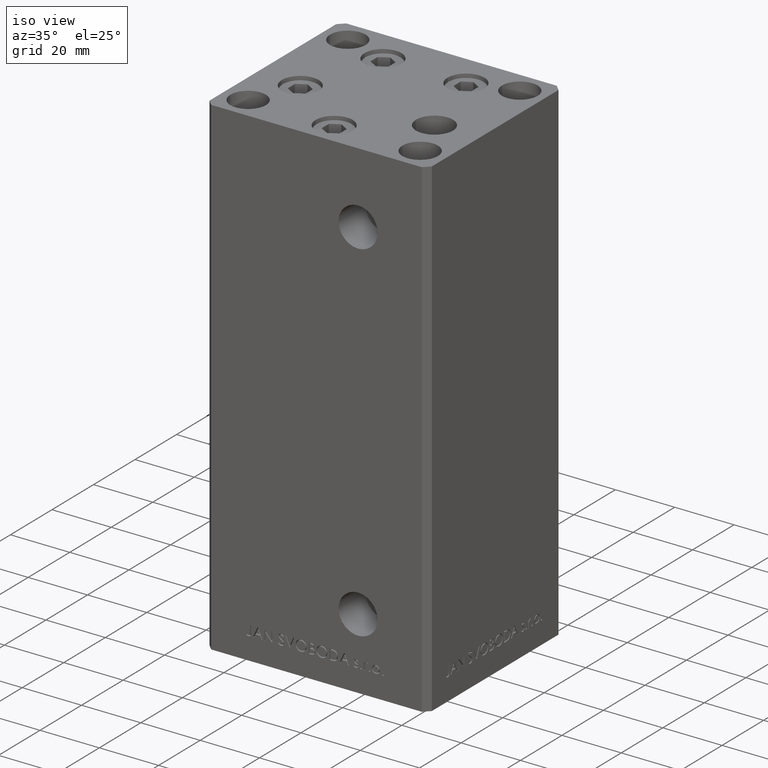
[diagram: clean part render]
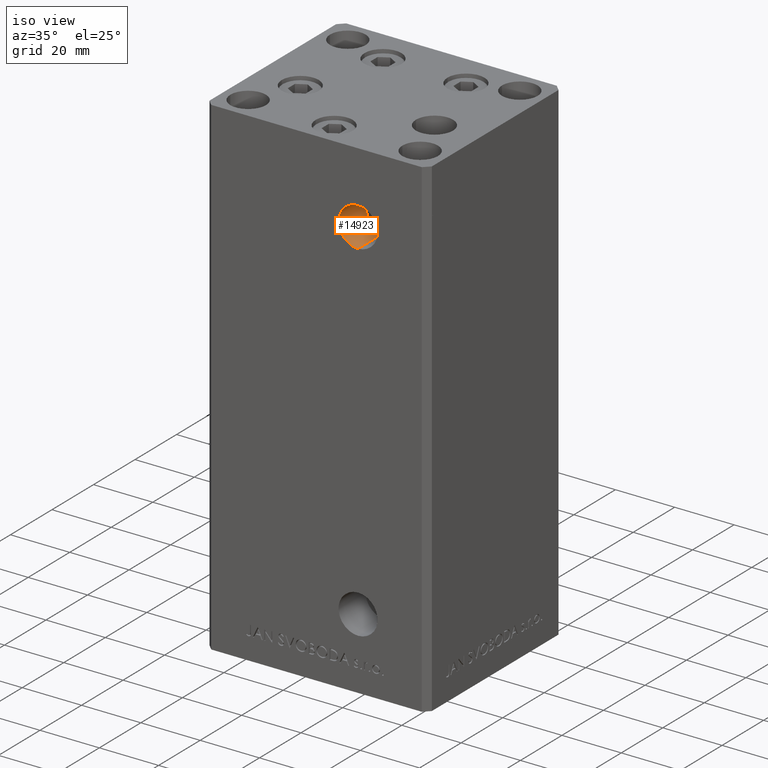
[diagram: same view with one face highlighted and labeled with its STEP entity id]
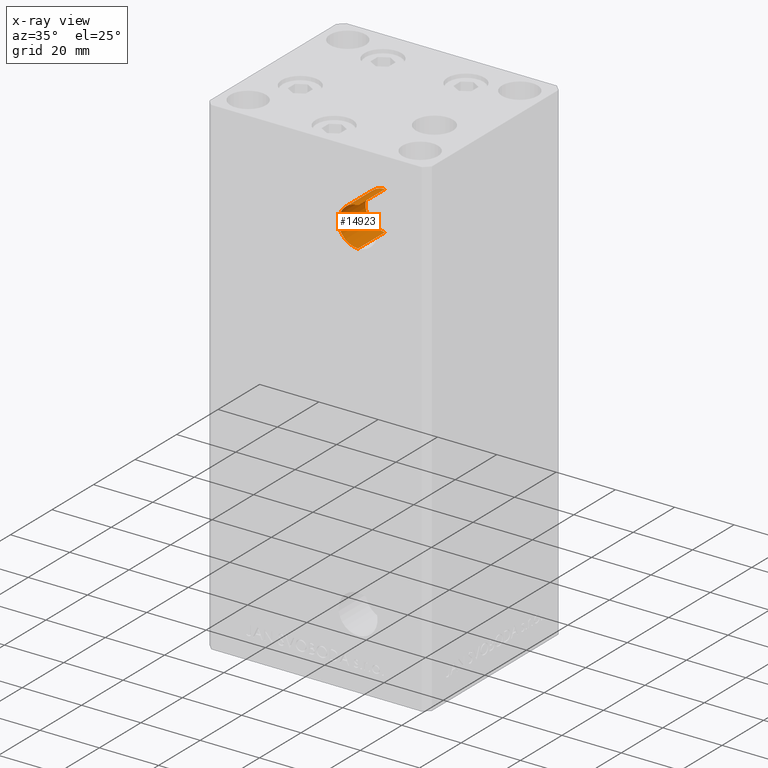
[diagram: x-ray of the same camera — body ghosted, the highlighted face saturated]
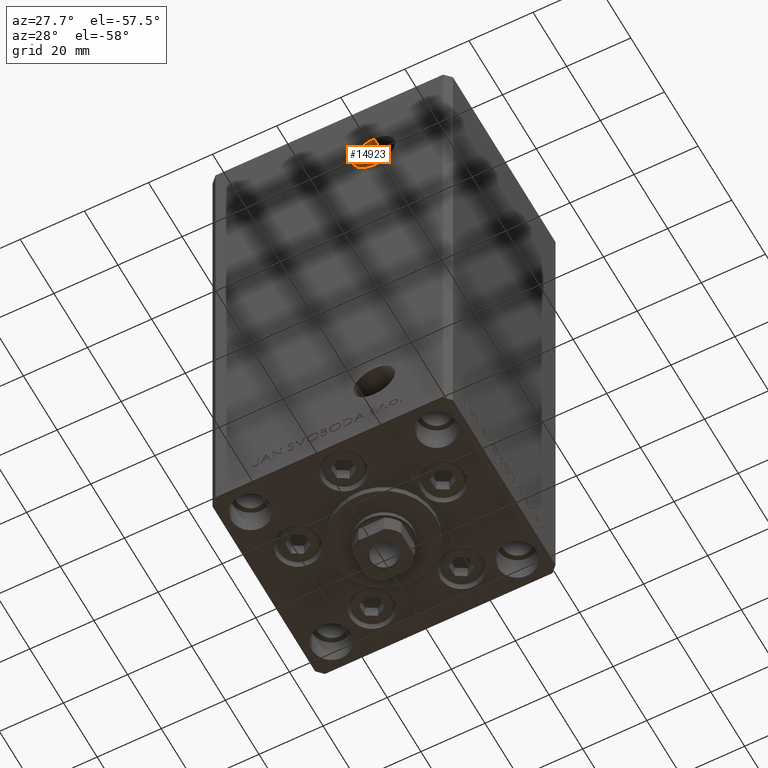
[diagram: same view with one face highlighted and labeled with its STEP entity id]
A machine part, iso view. The second image highlights one B-rep face of the part: STEP entity #14923.
The next image is the same camera in x-ray: the body ghosted, the highlighted face saturated — about 0% of this face is hidden behind the body in this view.
A second angle (auxiliary view) of the same face is appended — the face is thin or edge-on in the first view.
In plain terms, the highlighted cylindrical surface (edge-blend (fillet) strip) has radius 6.58 mm, axis along (-0, -1, -0).
Its self-contained STEP definition (entity closure, byte-faithful):
#991 = CIRCLE ( 'NONE', #35476, 6.580000000000002736 ) ;
#1203 = DIRECTION ( 'NONE',  ( 0.000000000000000000, 0.000000000000000000, -1.000000000000000000 ) ) ;
#3588 = CIRCLE ( 'NONE', #16420, 6.580000000000002736 ) ;
#5665 = ORIENTED_EDGE ( 'NONE', *, *, #31922, .T. ) ;
#6030 = EDGE_LOOP ( 'NONE', ( #5665, #34360, #9479, #35822 ) ) ;
#8101 = CYLINDRICAL_SURFACE ( 'NONE', #23790, 6.580000000000002736 ) ;
#8930 = VECTOR ( 'NONE', #37441, 1000.000000000000000 ) ;
#9479 = ORIENTED_EDGE ( 'NONE', *, *, #37503, .F. ) ;
#9581 = EDGE_CURVE ( 'NONE', #26982, #46742, #44729, .T. ) ;
#11019 = VERTEX_POINT ( 'NONE', #29560 ) ;
#11315 = CARTESIAN_POINT ( 'NONE',  ( 13.99999999999999112, -19.50000000000000355, 120.4200000000000017 ) ) ;
#11475 = DIRECTION ( 'NONE',  ( -0.000000000000000000, -1.000000000000000000, -0.000000000000000000 ) ) ;
#11614 = DIRECTION ( 'NONE',  ( 0.000000000000000000, 0.000000000000000000, -1.000000000000000000 ) ) ;
#12725 = CARTESIAN_POINT ( 'NONE',  ( 13.99999999999999112, -32.50000000000000000, 120.4200000000000017 ) ) ;
#14923 = ADVANCED_FACE ( 'NONE', ( #45534 ), #8101, .F. ) ;
#16420 = AXIS2_PLACEMENT_3D ( 'NONE', #28069, #24291, #1203 ) ;
#20624 = CARTESIAN_POINT ( 'NONE',  ( 13.99999999999999112, -19.50000000000000355, 120.4200000000000017 ) ) ;
#21570 = EDGE_CURVE ( 'NONE', #11019, #29898, #33610, .T. ) ;
#23790 = AXIS2_PLACEMENT_3D ( 'NONE', #46026, #34716, #11614 ) ;
#24291 = DIRECTION ( 'NONE',  ( -0.000000000000000000, 1.000000000000000000, -0.000000000000000000 ) ) ;
#24535 = CARTESIAN_POINT ( 'NONE',  ( 13.99999999999999112, -19.50000000000000355, 127.0000000000000000 ) ) ;
#24779 = DIRECTION ( 'NONE',  ( 0.000000000000000000, 0.000000000000000000, -1.000000000000000000 ) ) ;
#26982 = VERTEX_POINT ( 'NONE', #20624 ) ;
#28069 = CARTESIAN_POINT ( 'NONE',  ( 13.99999999999999112, -32.50000000000000000, 127.0000000000000000 ) ) ;
#29560 = CARTESIAN_POINT ( 'NONE',  ( 13.99999999999999112, -19.50000000000000355, 133.5800000000000125 ) ) ;
#29898 = VERTEX_POINT ( 'NONE', #40558 ) ;
#30567 = CARTESIAN_POINT ( 'NONE',  ( 13.99999999999999112, -19.50000000000000355, 133.5800000000000125 ) ) ;
#31922 = EDGE_CURVE ( 'NONE', #26982, #11019, #991, .T. ) ;
#32050 = VECTOR ( 'NONE', #11475, 1000.000000000000000 ) ;
#33610 = LINE ( 'NONE', #30567, #32050 ) ;
#34360 = ORIENTED_EDGE ( 'NONE', *, *, #21570, .T. ) ;
#34716 = DIRECTION ( 'NONE',  ( -0.000000000000000000, -1.000000000000000000, -0.000000000000000000 ) ) ;
#35476 = AXIS2_PLACEMENT_3D ( 'NONE', #24535, #35844, #24779 ) ;
#35822 = ORIENTED_EDGE ( 'NONE', *, *, #9581, .F. ) ;
#35844 = DIRECTION ( 'NONE',  ( -0.000000000000000000, 1.000000000000000000, -0.000000000000000000 ) ) ;
#37441 = DIRECTION ( 'NONE',  ( -0.000000000000000000, -1.000000000000000000, -0.000000000000000000 ) ) ;
#37503 = EDGE_CURVE ( 'NONE', #46742, #29898, #3588, .T. ) ;
#40558 = CARTESIAN_POINT ( 'NONE',  ( 13.99999999999999112, -32.50000000000000000, 133.5800000000000125 ) ) ;
#44729 = LINE ( 'NONE', #11315, #8930 ) ;
#45534 = FACE_OUTER_BOUND ( 'NONE', #6030, .T. ) ;
#46026 = CARTESIAN_POINT ( 'NONE',  ( 13.99999999999999112, -19.50000000000000355, 127.0000000000000000 ) ) ;
#46742 = VERTEX_POINT ( 'NONE', #12725 ) ;